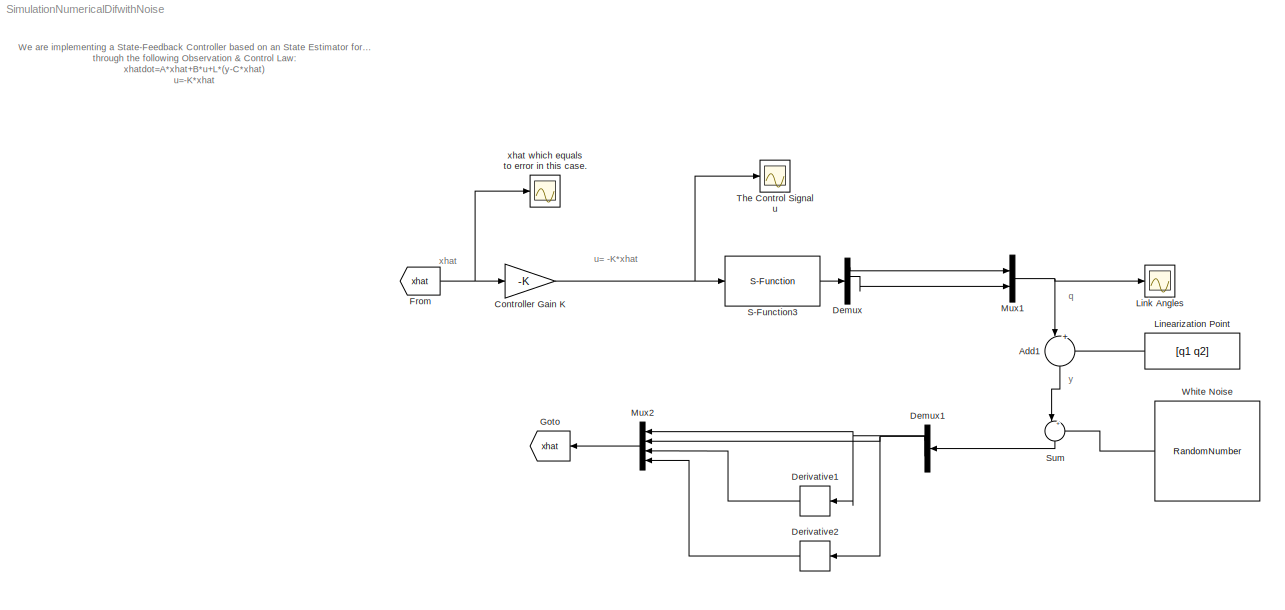
MODEL SimulationNumericalDifwithNoise
KIND model
BLOCK [Sum] Add1
  IconShape = round
  InputSameDT = off
  Inputs = |+-
  OutDataTypeStr = Inherit: Inherit via internal rule
  Ports = [2, 1]
  SID = 107
  SaturateOnIntegerOverflow = off
BLOCK [Gain] Controller Gain K
  Gain = -K
  Multiplication = Matrix(K*u)
  OutDataTypeStr = Inherit: Inherit via internal rule
  ParamDataTypeStr = Inherit: Inherit via internal rule
  SID = 11
  SaturateOnIntegerOverflow = off
BLOCK [Demux] Demux
  DisplayOption = bar
  Ports = [1, 4]
  SID = 112
BLOCK [Demux] Demux1
  DisplayOption = bar
  Outputs = 2
  Ports = [1, 2]
  SID = 131
BLOCK [Derivative] Derivative1
  SID = 129
BLOCK [Derivative] Derivative2
  SID = 130
BLOCK [From] From
  GotoTag = xhat
  SID = 110
BLOCK [Goto] Goto
  GotoTag = xhat
  SID = 135
BLOCK [Constant] Linearization Point
  SID = 106
  Value = [q1 q2]
BLOCK [Scope] Link Angles
  Floating = off
  NumInputPorts = 1
  Ports = [1]
  SID = 19
  ScopeSpecificationString = Simulink.scopes.TimeScopeBlockCfg('CurrentConfiguration', extmgr.ConfigurationSet(extmgr.Configuration('Core','General UI',true,'FigureColor',[1 1 1]),extmgr.Configuration('Core','Source UI',true),extmgr.Configuration('Sources','WiredSimulink',true,'DataLoggingVariableName','ScopeData1','DataLoggingSaveFormat','StructureWithTime','DataLoggingDecimation','1','DataLoggingDecimateData',true),extmgr.C...<+3028ch>
BLOCK [Mux] Mux1
  DisplayOption = bar
  Inputs = 2
  Ports = [2, 1]
  SID = 17
BLOCK [Mux] Mux2
  DisplayOption = bar
  Ports = [4, 1]
  SID = 132
BLOCK [S-Function] S-Function3
  EnableBusSupport = off
  FunctionName = NonLinModel
  Parameters = X0,Parameters
  Ports = [1, 1]
  SFcnIsStateOwnerBlock = off
  SFunctionDeploymentMode = off
  SID = 111
BLOCK [Sum] Sum
  IconShape = round
  Inputs = |++
  OutDataTypeStr = Inherit: Inherit via internal rule
  Ports = [2, 1]
  SID = 139
  SaturateOnIntegerOverflow = off
BLOCK [Scope] The Control Signal u
  Floating = off
  NumInputPorts = 1
  Ports = [1]
  SID = 20
  ScopeSpecificationString = C++SS(StrPVP('Location','[199, 113, 1143, 832]'),StrPVP('Open','off'),MxPVP('AxesTitles',53,'struct(''axes1'',''%<SignalLabel>'')'),StrPVP('TimeRange','20'),StrPVP('YMin','-110'),StrPVP('YMax','110'),StrPVP('SaveName','ScopeData3'),StrPVP('DataFormat','StructureWithTime'),StrPVP('LimitDataPoints','off'),StrPVP('BlockParamSampleTime','0'),StrPVP('Decimation','1'),StrPVP('BlockParamSampleInput','off...<+3ch>
BLOCK [RandomNumber] White Noise
  SID = 140
  SampleTime = T
BLOCK [Scope] xhat which equals to error in this case.
  Floating = off
  NumInputPorts = 1
  Ports = [1]
  SID = 21
  ScopeSpecificationString = C++SS(StrPVP('Location','[276, 168, 1220, 887]'),StrPVP('Open','off'),MxPVP('AxesTitles',53,'struct(''axes1'',''%<SignalLabel>'')'),MxPVP('ScopeGraphics',56,'struct(''FigureColor'',''[0.5 0.5 0.5]'',''AxesColor'',''[0 0 0]'',''AxesTickColor'',''[1 1 1]'',''LineColors'',''[1 1 0;1 0 1;0 1 1;1 0 0;0 1 0;0 0 1]'',''LineStyles'',''-|-|-|-|-|-'',''LineWidths'',''[0.5 0.5 0.5 0.5 0.5 0.5]'',''MarkerStyl...<+264ch>
ANNOTATION (root): We are implementing a State-Feedback Controller based on an State Estimator for the 2 DOF PantoGraph Mechanism,\nthrough the following Observation & Control Law:\nxhatdot=A*xhat+B*u+L*(y-C*xhat)\nu=-K*xhat
ANNOTATION (root): q
ANNOTATION (root): u= -K*xhat
ANNOTATION (root): xhat
ANNOTATION (root): y
LINE Add1:1 -> Sum:1
NET Controller Gain K:1 -> S-Function3:1, The Control Signal u:1
NET Demux1:1 -> Derivative1:1, Mux2:1
NET Demux1:2 -> Derivative2:1, Mux2:2
LINE Demux:1 -> Mux1:1
LINE Demux:2 -> Mux1:2
LINE Derivative1:1 -> Mux2:3
LINE Derivative2:1 -> Mux2:4
NET From:1 -> Controller Gain K:1, xhat which equals to error in this case.:1
LINE Linearization Point:1 -> Add1:2
NET Mux1:1 -> Add1:1, Link Angles:1
LINE Mux2:1 -> Goto:1
LINE S-Function3:1 -> Demux:1
LINE Sum:1 -> Demux1:1
LINE White Noise:1 -> Sum:2
note: NET lines group one-source signal fan-out (src -> all destinations, sorted); 1:1 wires keep LINE
